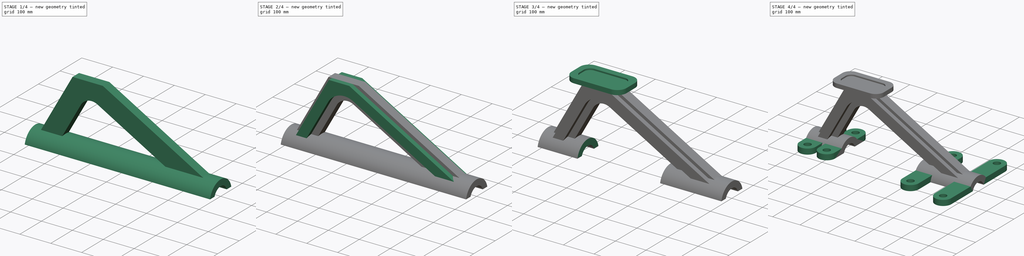
[diagram: build sequence overview — one tinted view per stage of 4, left to right]
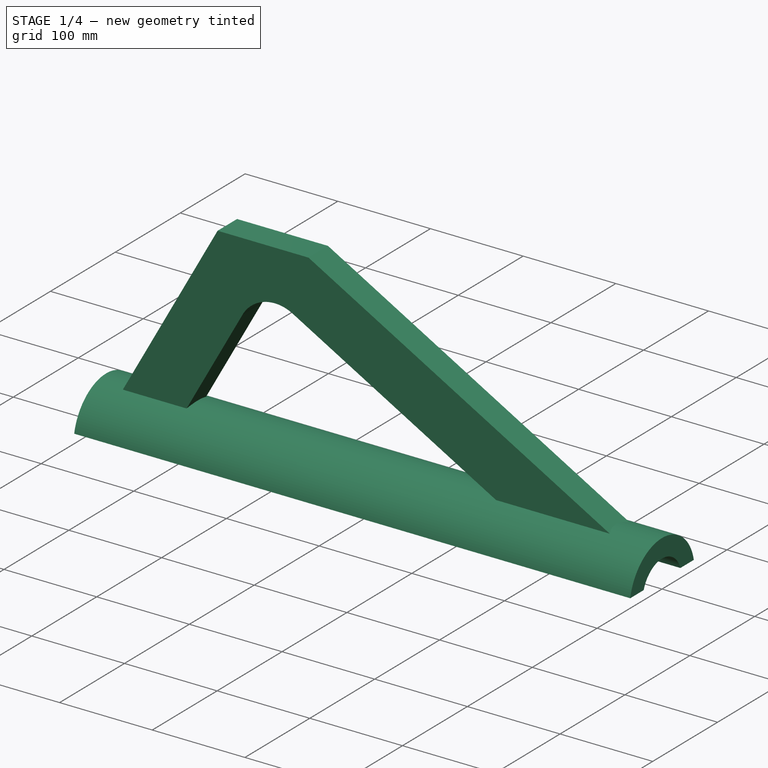
[diagram: stage 1 of 4 — iso view after this stage's code; geometry added in this stage tinted green]
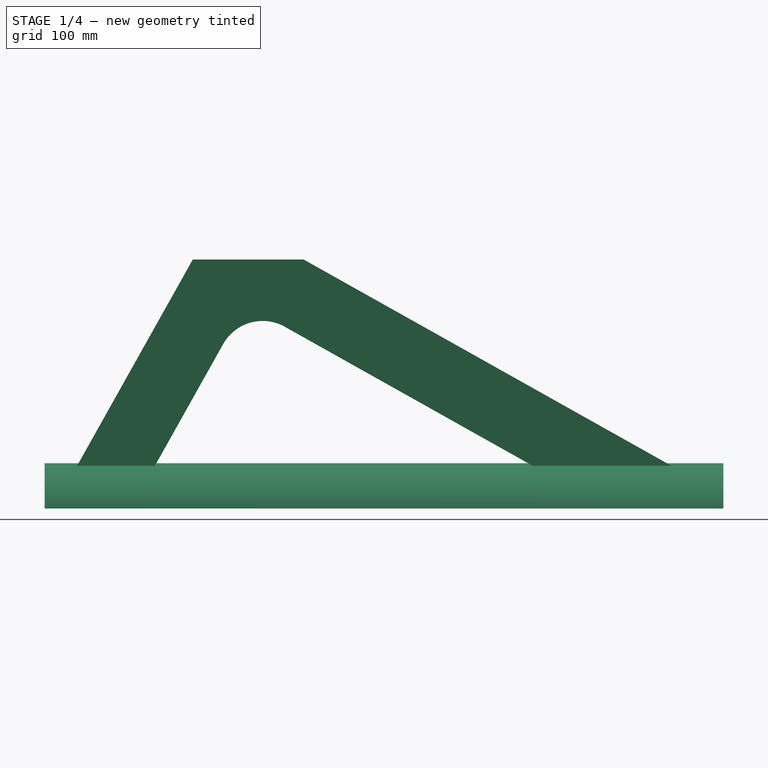
[diagram: stage 1 of 4 — front view after this stage's code; geometry added in this stage tinted green]
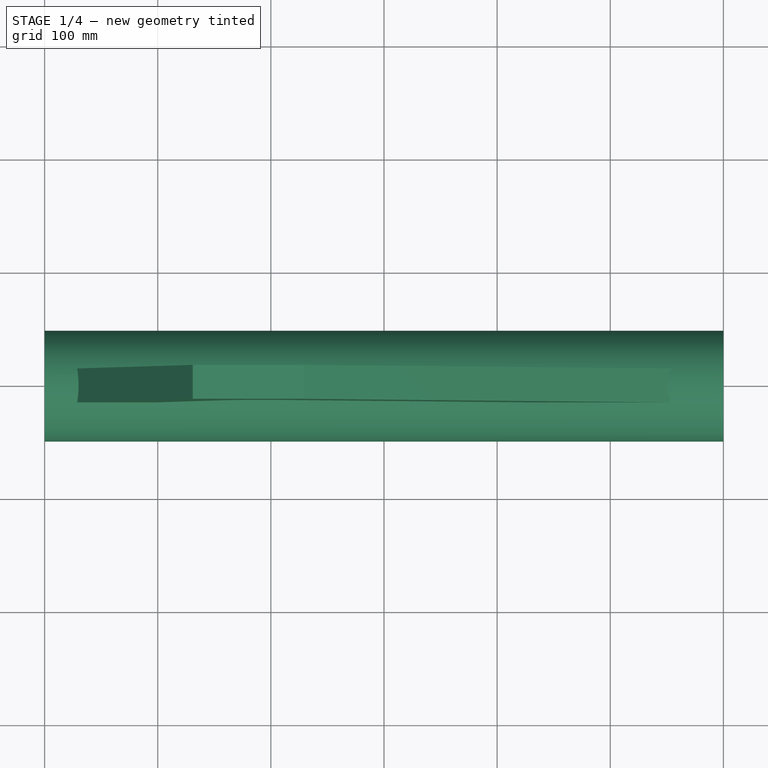
[diagram: stage 1 of 4 — top view after this stage's code; geometry added in this stage tinted green]
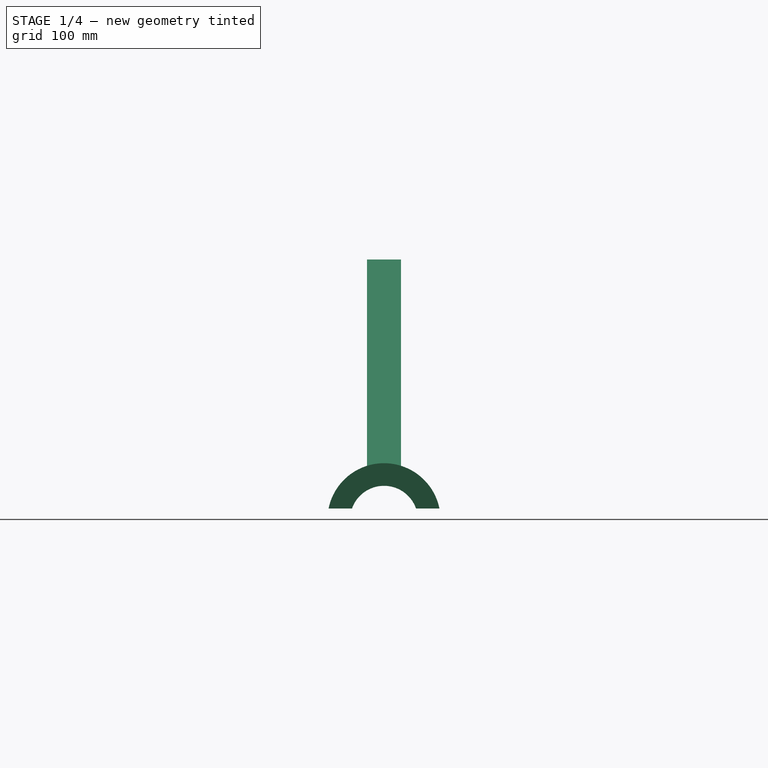
[diagram: stage 1 of 4 — right view after this stage's code; geometry added in this stage tinted green]
FCSTD DOCUMENT  (FreeCAD 1.1R42180 (Git))
Label: 23-T-83-Super_Mount
License: Creative Commons Attribution-NonCommercial-ShareAlike 4.0
LicenseURL: https://creativecommons.org/licenses/by-nc-sa/4.0/
objects: Sketcher::SketchObject×8, PartDesign::Pad×5, PartDesign::Mirrored×2, PartDesign::Pocket×2, App::Point×1, PartDesign::Body×1
note: 42 computed .brp shape members not serialized (recipe doc carries the construction recipe); baked Part::Feature solids carry a one-line shape summary decoded from their .brp

FEATURE [App::Point] Origin001  label="Origine"
  Role = Origin
FEATURE [Sketcher::SketchObject] Sketch
  ArcFitTolerance = 1e-06
  AttachmentSupport = -> [Origin]
  ExternalTypes = [0]
  FullyConstrained = true
  MakeInternals = false
  MapMode = 5
  Placement = pos=(0,0,0) rot=(0.57735,0.57735,0.57735;2.0944rad)
  sketch-geometry (5):
    g0: ArcOfCircle CenterX=0 CenterY=-10 CenterZ=0 NormalX=0 NormalY=0 NormalZ=1 AngleXU=0 Radius=30 StartAngle=0.339837 EndAngle=2.80176
    g1: ArcOfCircle CenterX=0 CenterY=-10 CenterZ=0 NormalX=0 NormalY=0 NormalZ=1 AngleXU=0 Radius=50 StartAngle=0.201358 EndAngle=2.94023
    g2: LineSegment StartX=-48.9898 StartY=7.1e-15 StartZ=0 EndX=-28.2843 EndY=-5.2172e-12 EndZ=0
    g3: LineSegment StartX=28.2843 StartY=-5.2154e-12 StartZ=0 EndX=48.9898 EndY=-3.6e-15 EndZ=0
    g4: GeomPoint [constr] X=0 Y=40 Z=0
  constraints (15):
    c: PointOnObject(g0,g-2)
    c: PointOnObject(g0,g-1)
    c: PointOnObject(g0,g-1)
    c: Coincident(g1,g0)
    c: PointOnObject(g1,g-1)
    c: PointOnObject(g1,g-1)
    c: Coincident(g2,g1)
    c: Coincident(g2,g0)
    c: Coincident(g3,g0)
    c: Coincident(g3,g1)
    c: Radius(g0) = 30
    c: Radius(g1) = 50
    c: PointOnObject(g4,g1)
    c: PointOnObject(g4,g-2)
    c: Distance(g4,g-1) = 40
FEATURE [PartDesign::Pad] Pad
  Direction = (1,0,0)
  Length = 600
  Length2 = 10
  Profile = -> Sketch
  ReferenceAxis = -> Sketch [N_Axis]
  Refine = true
  Suppressed = false
  Type = 0
FEATURE [Sketcher::SketchObject] Sketch001
  ArcFitTolerance = 1e-06
  AttachmentSupport = -> [Origin]
  ExternalTypes = [0]
  FullyConstrained = true
  MakeInternals = false
  MapMode = 5
FEATURE [Sketcher::SketchObject] Sketch002
  ArcFitTolerance = 1e-06
  AttachmentSupport = -> [Origin]
  ExternalGeometry = -> [Pad]
  ExternalTypes = [0,0,0]
  FullyConstrained = true
  MakeInternals = false
  MapMode = 5
  Placement = pos=(0,0,0) rot=(1,0,0;1.5708rad)
  sketch-geometry (13):
    g0: LineSegment StartX=18.7833 StartY=20 StartZ=0 EndX=130.95 EndY=220 EndZ=0
    g1: LineSegment StartX=130.95 StartY=220 StartZ=0 EndX=229.05 EndY=220 EndZ=0
    g2: LineSegment StartX=229.05 StartY=220 StartZ=0 EndX=585.661 EndY=20 EndZ=0
    g3: LineSegment StartX=18.7833 StartY=20 StartZ=0 EndX=87.5752 EndY=20 EndZ=0
    g4: LineSegment StartX=87.5752 StartY=20 StartZ=0 EndX=157.839 EndY=145.284 EndZ=0
    g5: LineSegment StartX=212.293 StartY=160.606 StartZ=0 EndX=463.001 EndY=20 EndZ=0
    g6: LineSegment StartX=463.001 StartY=20 StartZ=0 EndX=585.661 EndY=20 EndZ=0
    g7: ArcOfCircle CenterX=192.727 CenterY=125.718 CenterZ=0 NormalX=0 NormalY=0 NormalZ=1 AngleXU=0 Radius=40 StartAngle=1.05967 EndAngle=2.63047
    g8: LineSegment [constr] StartX=229.05 StartY=220 StartZ=0 EndX=229.05 EndY=235 EndZ=0
    g9: GeomPoint [constr] X=30 Y=40 Z=0
    g10: GeomPoint [constr] X=550 Y=40 Z=0
    g11: LineSegment [constr] StartX=130.95 StartY=220 StartZ=0 EndX=90 EndY=220 EndZ=0
    g12: LineSegment [constr] StartX=229.05 StartY=220 StartZ=0 EndX=270 EndY=220 EndZ=0
  constraints (36):
    c: Coincident(g0,g1)
    c: Horizontal(g1)
    c: Coincident(g1,g2)
    c: Horizontal(g2,g0)
    c: Horizontal(g0,g-16)
    c: Coincident(g0,g3)
    c: PointOnObject(g3,g-14)
    c: Coincident(g3,g4)
    c: PointOnObject(g5,g-14)
    c: Coincident(g5,g6)
    c: Coincident(g6,g2)
    c: Angle(g4,g5) = 1.5708
    c: Parallel(g0,g4)
    c: Parallel(g5,g2)
    c: Radius(g7) = 40
    c: Tangent(g7,g5) = 1.5708
    c: Tangent(g7,g4) = 1.5708
    c: Distance(g4,g0) = 60
    c: Distance(g5,g2) = 60
    c: Distance(g8) = 15
    c: Coincident(g8,g1)
    c: Vertical(g8)
    c: Distance(g8,g-15) = 235
    c: PointOnObject(g9,g0)
    c: PointOnObject(g10,g2)
    c: PointOnObject(g10,g-7)
    c: DistanceX(g10,g-10) = 50
    c: DistanceX(g-9,g9) = 30
    c: PointOnObject(g9,g-7)
    c: Coincident(g11,g0)
    c: Horizontal(g11)
    c: Coincident(g12,g1)
    c: Horizontal(g12)
    c: Equal(g11,g12)
    c: DistanceX(g11,g12) = 180
    c: Distance(g11,g-2) = 90
FEATURE [PartDesign::Pad] Pad001
  BaseFeature = -> Pad
  Direction = (0,-1,0)
  Length = 30
  Length2 = 10
  Midplane = true
  Profile = -> Sketch002
  ReferenceAxis = -> Sketch002 [N_Axis]
  Refine = true
  Suppressed = false
  Type = 0
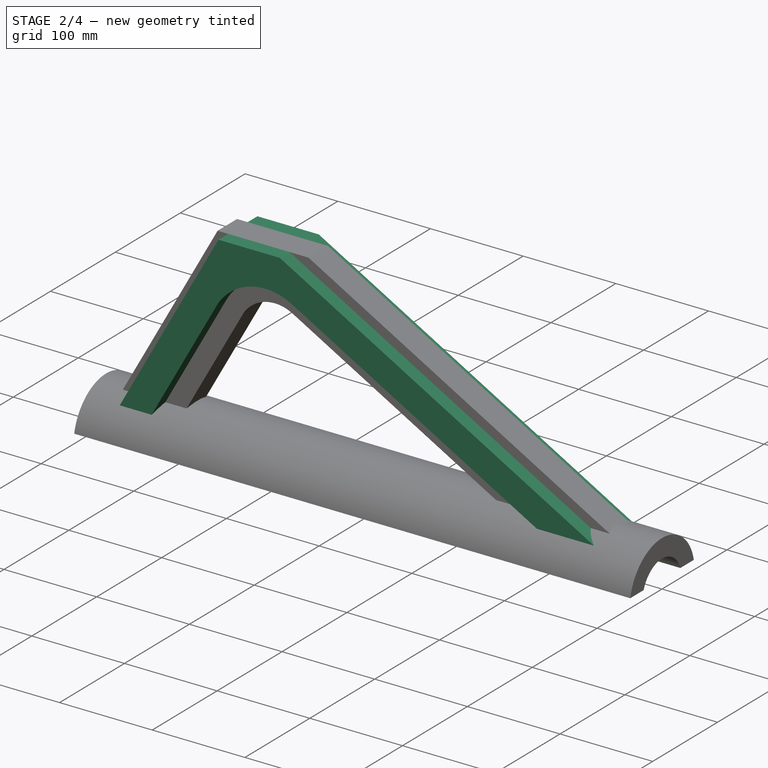
[diagram: stage 2 of 4 — iso view after this stage's code; geometry added in this stage tinted green]
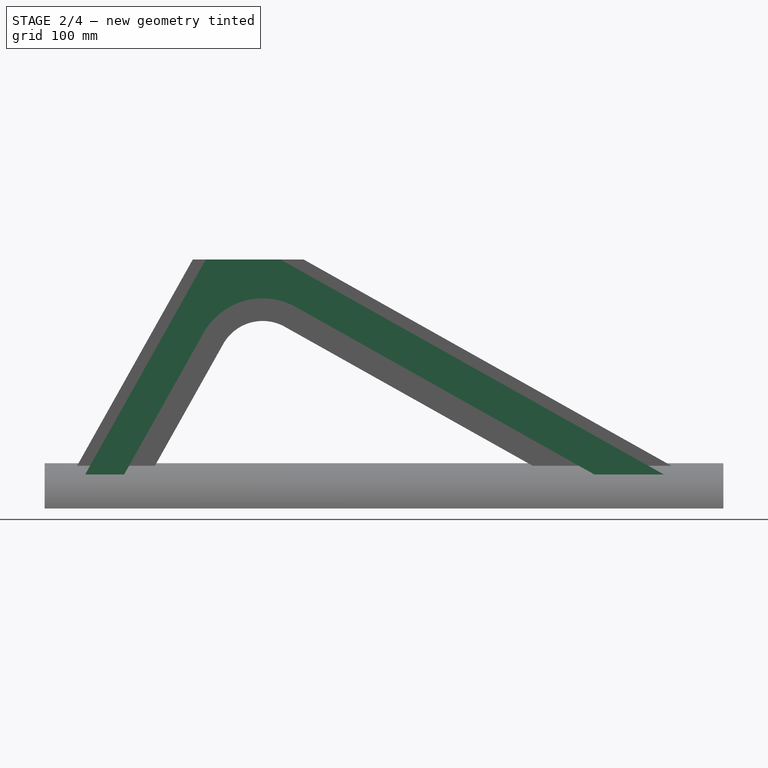
[diagram: stage 2 of 4 — front view after this stage's code; geometry added in this stage tinted green]
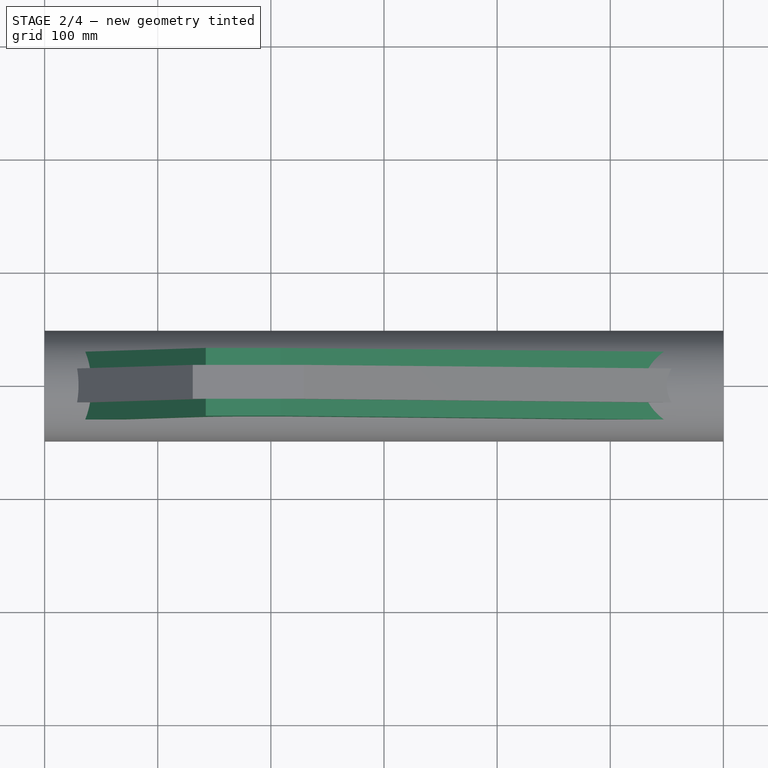
[diagram: stage 2 of 4 — top view after this stage's code; geometry added in this stage tinted green]
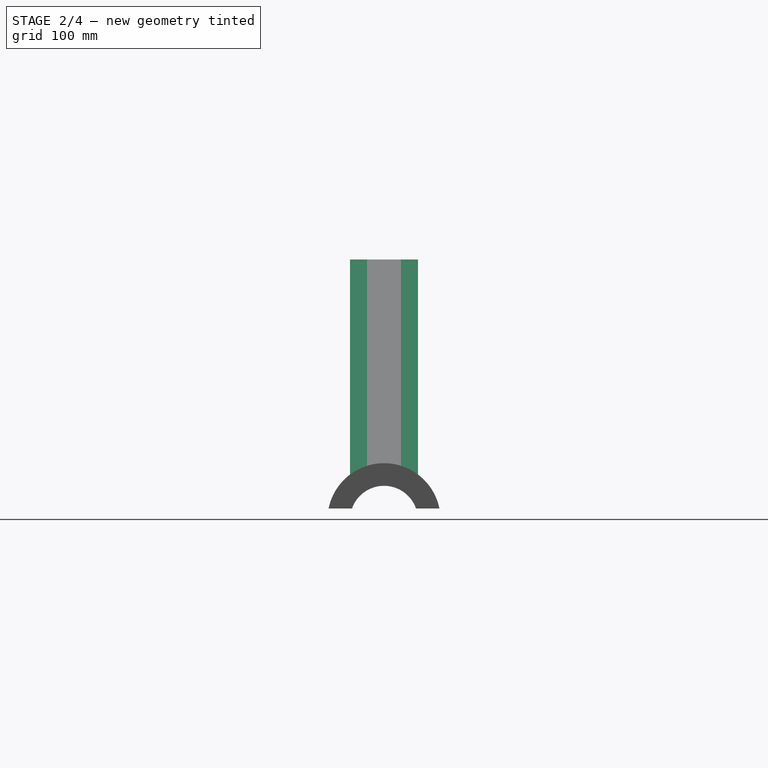
[diagram: stage 2 of 4 — right view after this stage's code; geometry added in this stage tinted green]
FEATURE [Sketcher::SketchObject] Sketch003
  ArcFitTolerance = 1e-06
  AttachmentSupport = -> [Origin]
  ExternalGeometry = -> [Pad001]
  ExternalTypes = [0,0,0,0,0]
  FullyConstrained = true
  MakeInternals = false
  MapMode = 5
  Placement = pos=(0,0,0) rot=(1,0,0;1.5708rad)
  sketch-geometry (8):
    g0: LineSegment StartX=30.2486 StartY=20 StartZ=0 EndX=142.416 EndY=220 EndZ=0
    g1: LineSegment StartX=142.416 StartY=220 StartZ=0 EndX=208.606 EndY=220 EndZ=0
    g2: LineSegment StartX=208.606 StartY=220 StartZ=0 EndX=565.218 EndY=20 EndZ=0
    g3: LineSegment StartX=565.218 StartY=20 StartZ=0 EndX=503.888 EndY=20 EndZ=0
    g4: LineSegment StartX=503.888 StartY=20 StartZ=0 EndX=222.076 EndY=178.05 EndZ=0
    g5: ArcOfCircle CenterX=192.727 CenterY=125.718 CenterZ=0 NormalX=0 NormalY=0 NormalZ=1 AngleXU=0 Radius=60 StartAngle=1.05967 EndAngle=2.63047
    g6: LineSegment StartX=140.395 StartY=155.067 StartZ=0 EndX=64.6446 EndY=20 EndZ=0
    g7: LineSegment StartX=64.6446 StartY=20 StartZ=0 EndX=30.2486 EndY=20 EndZ=0
  constraints (22):
    c: Coincident(g0,g1)
    c: Horizontal(g1)
    c: Coincident(g1,g2)
    c: Coincident(g2,g3)
    c: Horizontal(g3)
    c: Coincident(g3,g4)
    c: Tangent(g4,g5) = -1.5708
    c: Coincident(g6,g7)
    c: Coincident(g7,g0)
    c: Horizontal(g7)
    c: Horizontal(g0,g-7)
    c: Horizontal(g3,g6)
    c: Tangent(g5,g6) = -1.5708
    c: Coincident(g-3,g5)
    c: Parallel(g6,g-4)
    c: Distance(g5,g0) = 30
    c: Distance(g5,g-4) = 20
    c: Horizontal(g0,g-5)
    c: Parallel(g0,g6)
    c: Parallel(g4,g2)
    c: Parallel(g-6,g4)
    c: Distance(g4,g2) = 30
FEATURE [PartDesign::Pad] Pad002
  BaseFeature = -> Pad001
  Direction = (0,-1,2e-16)
  Length = 60
  Length2 = 10
  Midplane = true
  Profile = -> Sketch003
  ReferenceAxis = -> Sketch003 [N_Axis]
  Refine = true
  Suppressed = false
  Type = 0
FEATURE [PartDesign::Mirrored] Mirrored
  BaseFeature = -> Pad002
  MirrorPlane = -> XZ_Plane
  Originals = -> [Pad002]
  Refine = true
  Suppressed = false
  TransformMode = 0
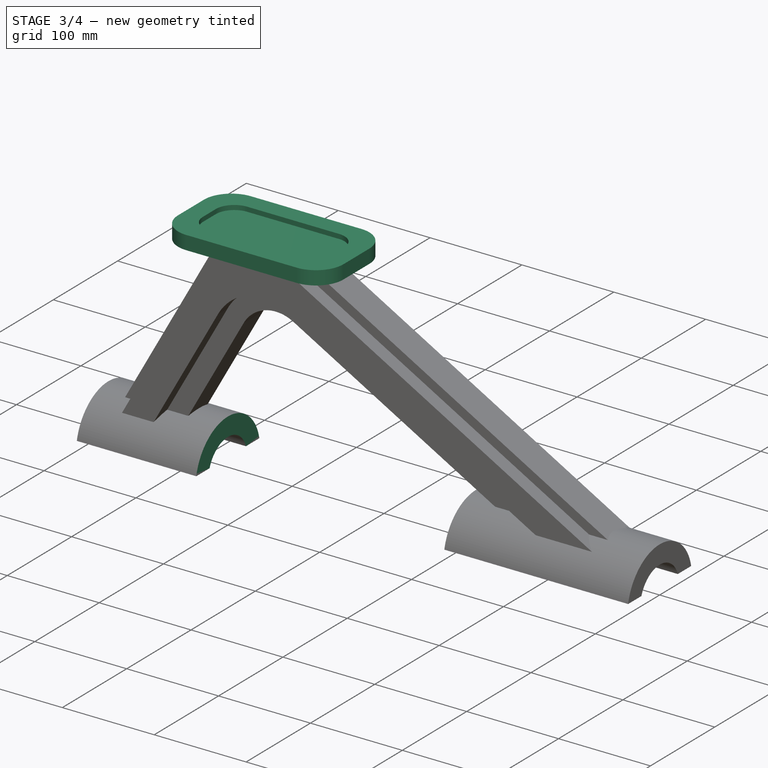
[diagram: stage 3 of 4 — iso view after this stage's code; geometry added in this stage tinted green]
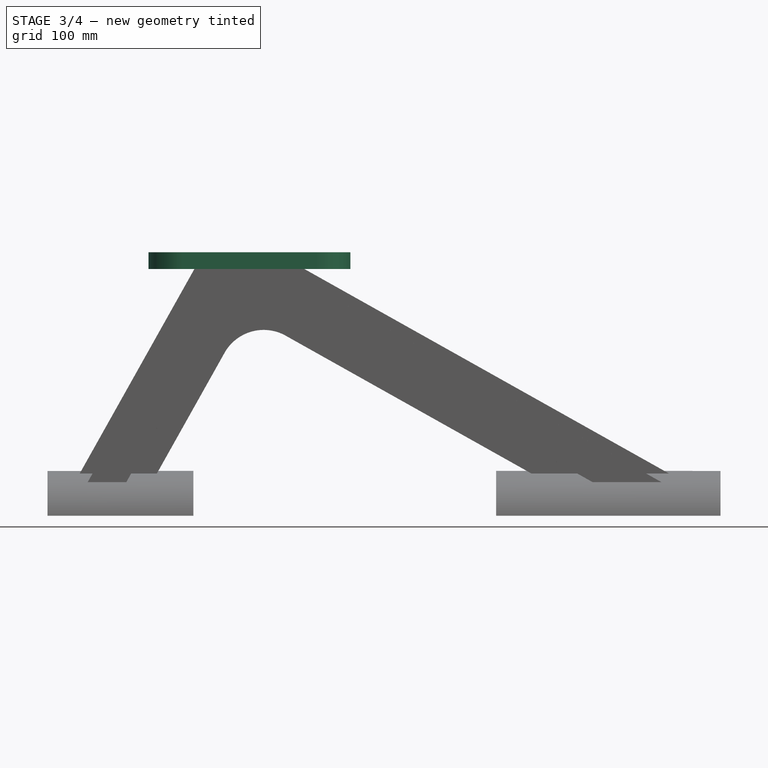
[diagram: stage 3 of 4 — front view after this stage's code; geometry added in this stage tinted green]
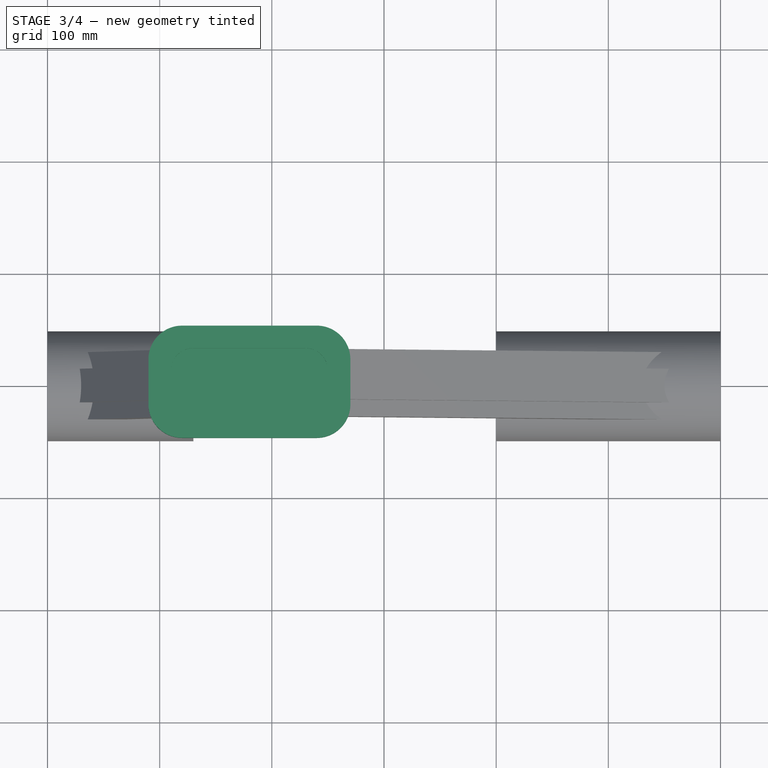
[diagram: stage 3 of 4 — top view after this stage's code; geometry added in this stage tinted green]
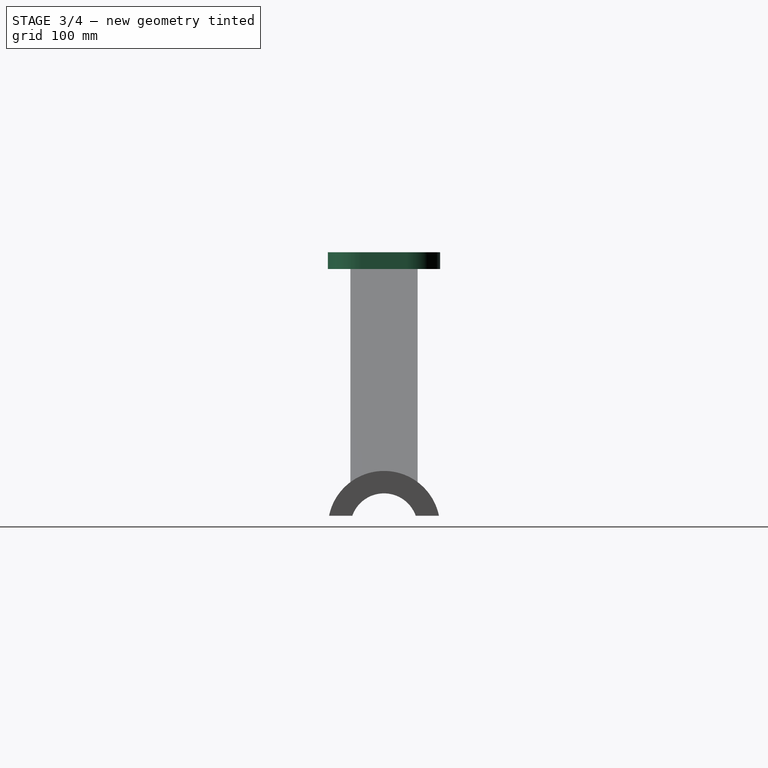
[diagram: stage 3 of 4 — right view after this stage's code; geometry added in this stage tinted green]
FEATURE [Sketcher::SketchObject] Sketch004
  ArcFitTolerance = 1e-06
  AttachmentSupport = -> [Origin]
  ExternalGeometry = -> [Mirrored]
  ExternalTypes = [0,0]
  FullyConstrained = true
  MakeInternals = false
  MapMode = 5
  Placement = pos=(0,0,0) rot=(1,0,0;1.5708rad)
  sketch-geometry (4):
    g0: LineSegment StartX=130 StartY=40 StartZ=0 EndX=130 EndY=0 EndZ=0
    g1: LineSegment StartX=130 StartY=0 StartZ=0 EndX=400 EndY=0 EndZ=0
    g2: LineSegment StartX=400 StartY=0 StartZ=0 EndX=400 EndY=40 EndZ=0
    g3: LineSegment StartX=400 StartY=40 StartZ=0 EndX=130 EndY=40 EndZ=0
  constraints (12):
    c: Coincident(g0,g1)
    c: Coincident(g1,g2)
    c: Coincident(g2,g3)
    c: Coincident(g3,g0)
    c: Vertical(g0)
    c: Vertical(g2)
    c: Horizontal(g1)
    c: Horizontal(g3)
    c: DistanceX(g-1,g0) = 130
    c: DistanceX(g1,g-3) = 200
    c: Horizontal(g2,g-3)
    c: Horizontal(g1,g-3)
FEATURE [PartDesign::Pocket] Pocket
  BaseFeature = -> Mirrored
  Direction = (0,1,-2e-16)
  Length = 5
  Length2 = 5
  Midplane = true
  Profile = -> Sketch004
  ReferenceAxis = -> Sketch004 [N_Axis]
  Refine = true
  Suppressed = false
  Type = 1
FEATURE [Sketcher::SketchObject] Sketch005
  ArcFitTolerance = 1e-06
  AttachmentSupport = -> [Pocket]
  ExternalTypes = [0]
  FullyConstrained = true
  MakeInternals = false
  MapMode = 5
  Placement = pos=(0,0,220) rot=(0,0,1;0rad)
  sketch-geometry (10):
    g0: LineSegment StartX=90 StartY=20 StartZ=0 EndX=90 EndY=-20 EndZ=0
    g1: LineSegment StartX=120 StartY=-50 StartZ=0 EndX=240 EndY=-50 EndZ=0
    g2: LineSegment StartX=270 StartY=-20 StartZ=0 EndX=270 EndY=20 EndZ=0
    g3: LineSegment StartX=240 StartY=50 StartZ=0 EndX=120 EndY=50 EndZ=0
    g4: ArcOfCircle CenterX=120 CenterY=20 CenterZ=0 NormalX=0 NormalY=0 NormalZ=1 AngleXU=0 Radius=30 StartAngle=1.5708 EndAngle=3.14159
    g5: ArcOfCircle CenterX=120 CenterY=-20 CenterZ=0 NormalX=0 NormalY=0 NormalZ=1 AngleXU=0 Radius=30 StartAngle=3.14159 EndAngle=4.71239
    g6: ArcOfCircle CenterX=240 CenterY=-20 CenterZ=0 NormalX=0 NormalY=0 NormalZ=1 AngleXU=0 Radius=30 StartAngle=4.71239 EndAngle=6.28319
    g7: ArcOfCircle CenterX=240 CenterY=20 CenterZ=0 NormalX=0 NormalY=0 NormalZ=1 AngleXU=0 Radius=30 StartAngle=0 EndAngle=1.5708
    g8: GeomPoint [constr] X=90 Y=50 Z=0
    g9: GeomPoint [constr] X=270 Y=-50 Z=0
  constraints (23):
    c: Tangent(g0,g4) = -1.5708
    c: Tangent(g0,g5) = -1.5708
    c: Tangent(g1,g5) = -1.5708
    c: Tangent(g1,g6) = -1.5708
    c: Tangent(g2,g6) = -1.5708
    c: Tangent(g2,g7) = -1.5708
    c: Tangent(g3,g7) = -1.5708
    c: Tangent(g3,g4) = -1.5708
    c: Vertical(g0)
    c: Vertical(g2)
    c: Horizontal(g1)
    c: Horizontal(g3)
    c: Equal(g4,g5)
    c: Equal(g5,g6)
    c: PointOnObject(g8,g0)
    c: PointOnObject(g8,g3)
    c: PointOnObject(g9,g1)
    c: PointOnObject(g9,g2)
    c: Distance(g0,g2) = 180
    c: Distance(g1,g3) = 100
    c: Radius(g5) = 30
    c: Symmetric(g6,g7,g-1)
    c: Distance(g0,g-2) = 90
FEATURE [PartDesign::Pad] Pad003
  BaseFeature = -> Pocket
  Direction = (0,0,1)
  Length = 15
  Length2 = 10
  Profile = -> Sketch005
  ReferenceAxis = -> Sketch005 [N_Axis]
  Refine = true
  Suppressed = false
  Type = 0
FEATURE [Sketcher::SketchObject] Sketch006
  ArcFitTolerance = 1e-06
  AttachmentSupport = -> [Pad003]
  ExternalGeometry = -> [Sketch005]
  ExternalTypes = [0,0,0]
  FullyConstrained = true
  MakeInternals = false
  MapMode = 5
  Placement = pos=(0,0,235) rot=(0,0,1;0rad)
  sketch-geometry (10):
    g0: LineSegment StartX=110 StartY=10 StartZ=0 EndX=110 EndY=-10 EndZ=0
    g1: LineSegment StartX=130 StartY=-30 StartZ=0 EndX=230 EndY=-30 EndZ=0
    g2: LineSegment StartX=250 StartY=-10 StartZ=0 EndX=250 EndY=10 EndZ=0
    g3: LineSegment StartX=230 StartY=30 StartZ=0 EndX=130 EndY=30 EndZ=0
    g4: ArcOfCircle CenterX=130 CenterY=10 CenterZ=0 NormalX=0 NormalY=0 NormalZ=1 AngleXU=0 Radius=20 StartAngle=1.5708 EndAngle=3.14159
    g5: ArcOfCircle CenterX=130 CenterY=-10 CenterZ=0 NormalX=0 NormalY=0 NormalZ=1 AngleXU=0 Radius=20 StartAngle=3.14159 EndAngle=4.71239
    g6: ArcOfCircle CenterX=230 CenterY=-10 CenterZ=0 NormalX=0 NormalY=0 NormalZ=1 AngleXU=0 Radius=20 StartAngle=4.71239 EndAngle=6.28319
    g7: ArcOfCircle CenterX=230 CenterY=10 CenterZ=0 NormalX=0 NormalY=0 NormalZ=1 AngleXU=0 Radius=20 StartAngle=0 EndAngle=1.5708
    g8: GeomPoint [constr] X=110 Y=30 Z=0
    g9: GeomPoint [constr] X=250 Y=-30 Z=0
  constraints (23):
    c: Tangent(g0,g4) = -1.5708
    c: Tangent(g0,g5) = -1.5708
    c: Tangent(g1,g5) = -1.5708
    c: Tangent(g1,g6) = -1.5708
    c: Tangent(g2,g6) = -1.5708
    c: Tangent(g2,g7) = -1.5708
    c: Tangent(g3,g7) = -1.5708
    c: Tangent(g3,g4) = -1.5708
    c: Vertical(g0)
    c: Vertical(g2)
    c: Horizontal(g1)
    c: Horizontal(g3)
    c: Equal(g4,g5)
    c: Equal(g5,g6)
    c: PointOnObject(g8,g0)
    c: PointOnObject(g8,g3)
    c: PointOnObject(g9,g1)
    c: PointOnObject(g9,g2)
    c: Radius(g5) = 20
    c: Distance(g3,g-3) = 20
    c: Symmetric(g6,g7,g-1)
    c: DistanceX(g2,g-4) = 20
    c: Distance(g0,g-5) = 20
FEATURE [PartDesign::Pocket] Pocket001
  BaseFeature = -> Pad003
  Direction = (0,0,-1)
  Length = 5
  Length2 = 5
  Profile = -> Sketch006
  ReferenceAxis = -> Sketch006 [N_Axis]
  Refine = true
  Suppressed = false
  Type = 0
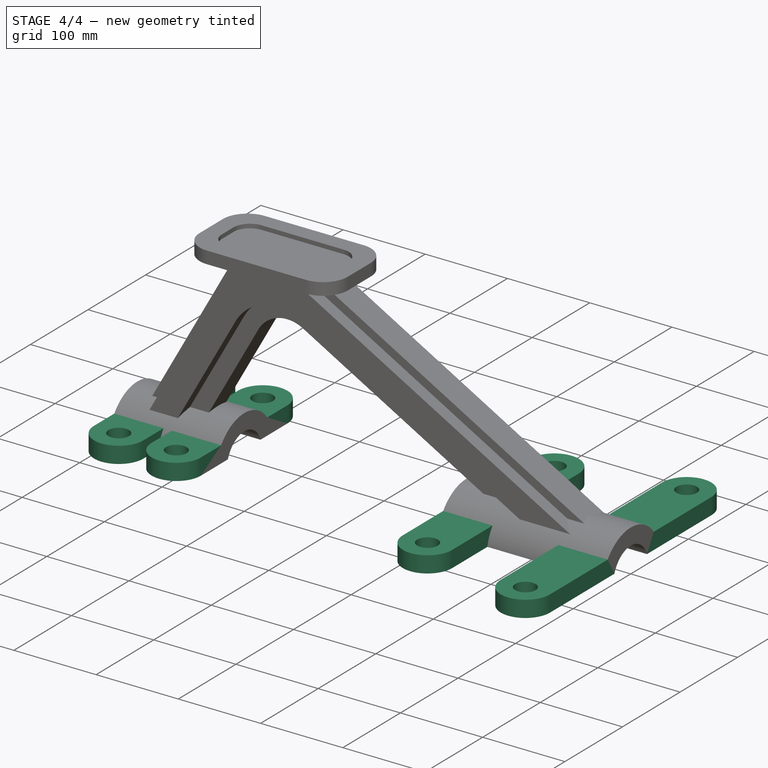
[diagram: stage 4 of 4 — iso view after this stage's code; geometry added in this stage tinted green]
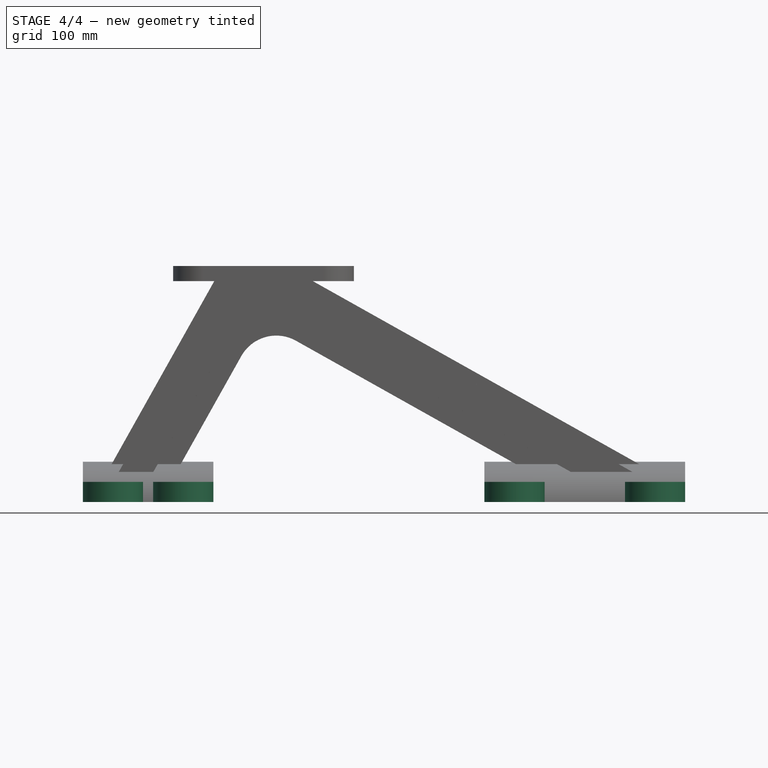
[diagram: stage 4 of 4 — front view after this stage's code; geometry added in this stage tinted green]
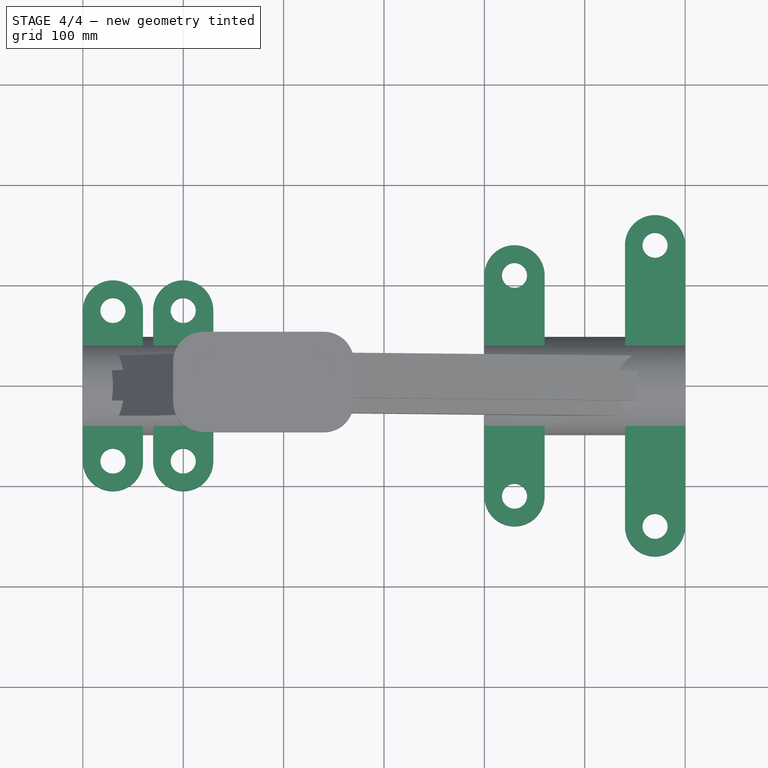
[diagram: stage 4 of 4 — top view after this stage's code; geometry added in this stage tinted green]
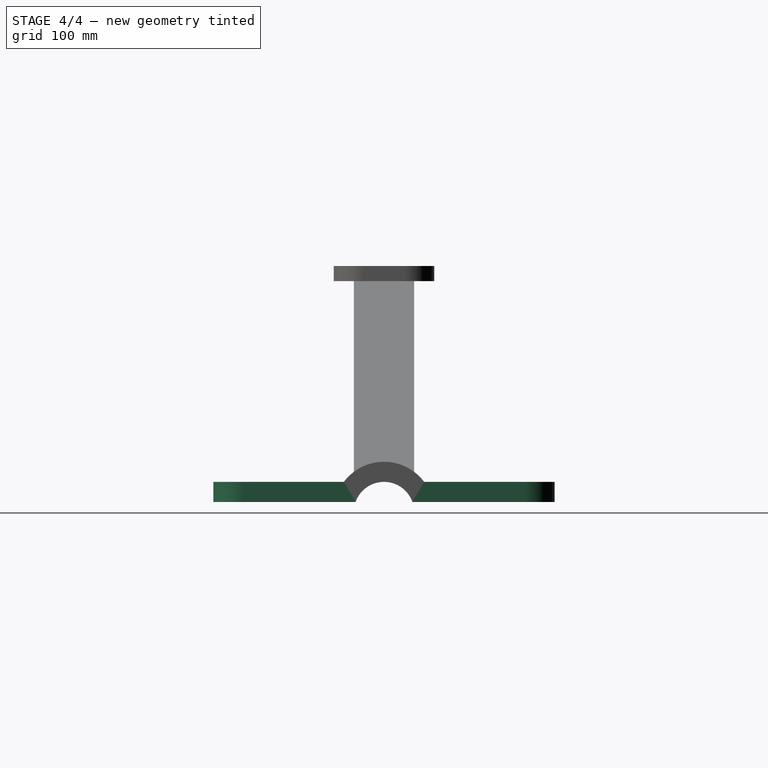
[diagram: stage 4 of 4 — right view after this stage's code; geometry added in this stage tinted green]
FEATURE [Sketcher::SketchObject] Sketch007
  ArcFitTolerance = 1e-06
  AttachmentSupport = -> [Origin]
  ExternalGeometry = -> [Pocket001]
  ExternalTypes = [0,0,0,0]
  FullyConstrained = true
  MakeInternals = false
  MapMode = 5
  expr: Constraints[24] = 150 / 2
  expr: Constraints[45] = 220 / 2
  sketch-geometry (20):
    g0: Circle CenterX=30 CenterY=-75 CenterZ=0 NormalX=0 NormalY=0 NormalZ=1 AngleXU=0 Radius=12.5
    g1: Circle CenterX=100 CenterY=-75 CenterZ=0 NormalX=0 NormalY=0 NormalZ=1 AngleXU=0 Radius=12.5
    g2: Circle CenterX=430 CenterY=-110 CenterZ=0 NormalX=0 NormalY=0 NormalZ=1 AngleXU=0 Radius=12.5
    g3: Circle CenterX=570 CenterY=-140 CenterZ=0 NormalX=0 NormalY=0 NormalZ=1 AngleXU=0 Radius=12.5
    g4: LineSegment StartX=0 StartY=-28.2843 StartZ=0 EndX=0 EndY=-75 EndZ=0
    g5: ArcOfCircle CenterX=30 CenterY=-75 CenterZ=0 NormalX=0 NormalY=0 NormalZ=1 AngleXU=0 Radius=30 StartAngle=3.14159 EndAngle=6.28319
    g6: LineSegment StartX=60 StartY=-75 StartZ=0 EndX=60 EndY=-28.2843 EndZ=0
    g7: LineSegment StartX=60 StartY=-28.2843 StartZ=0 EndX=0 EndY=-28.2843 EndZ=0
    g8: LineSegment StartX=130 StartY=-28.2843 StartZ=0 EndX=130 EndY=-75 EndZ=0
    g9: ArcOfCircle CenterX=100 CenterY=-75 CenterZ=0 NormalX=0 NormalY=0 NormalZ=1 AngleXU=0 Radius=30 StartAngle=3.14159 EndAngle=6.28319
    g10: LineSegment StartX=70 StartY=-75 StartZ=0 EndX=70 EndY=-28.2843 EndZ=0
    g11: LineSegment StartX=70 StartY=-28.2843 StartZ=0 EndX=130 EndY=-28.2843 EndZ=0
    g12: LineSegment StartX=400 StartY=-28.2843 StartZ=0 EndX=460 EndY=-28.2843 EndZ=0
    g13: LineSegment StartX=460 StartY=-28.2843 StartZ=0 EndX=460 EndY=-110 EndZ=0
    g14: ArcOfCircle CenterX=430 CenterY=-110 CenterZ=0 NormalX=0 NormalY=0 NormalZ=1 AngleXU=0 Radius=30 StartAngle=3.14159 EndAngle=6.28319
    g15: LineSegment StartX=400 StartY=-110 StartZ=0 EndX=400 EndY=-28.2843 EndZ=0
    g16: LineSegment StartX=540 StartY=-28.2843 StartZ=0 EndX=540 EndY=-140 EndZ=0
    g17: ArcOfCircle CenterX=570 CenterY=-140 CenterZ=0 NormalX=0 NormalY=0 NormalZ=1 AngleXU=0 Radius=30 StartAngle=3.14159 EndAngle=6.28319
    g18: LineSegment StartX=600 StartY=-140 StartZ=0 EndX=600 EndY=-28.2843 EndZ=0
    g19: LineSegment StartX=600 StartY=-28.2843 StartZ=0 EndX=540 EndY=-28.2843 EndZ=0
  constraints (48):
    c: Equal(g0,g1)
    c: Equal(g1,g2)
    c: Equal(g2,g3)
    c: Diameter(g3) = 25
    c: Vertical(g4)
    c: Tangent(g4,g5) = -1.5708
    c: Tangent(g5,g6) = -1.5708
    c: Coincident(g6,g7)
    c: Coincident(g7,g4)
    c: Horizontal(g7)
    c: Vertical(g6)
    c: Coincident(g4,g-5)
    c: Coincident(g0,g5)
    c: Radius(g5) = 30
    c: Coincident(g-5,g8)
    c: Vertical(g8)
    c: Tangent(g8,g9) = 1.5708
    c: Tangent(g9,g10) = 1.5708
    c: Coincident(g10,g11)
    c: Coincident(g11,g8)
    c: Horizontal(g11)
    c: Coincident(g1,g9)
    c: Horizontal(g1,g0)
    c: Vertical(g10)
    c: Distance(g1,g-1) = 75
    c: Equal(g11,g7)
    c: Coincident(g-6,g12)
    c: PointOnObject(g12,g-6)
    c: Coincident(g12,g13)
    c: Vertical(g13)
    c: Tangent(g13,g14) = 1.5708
    c: Tangent(g14,g15) = 1.5708
    c: Coincident(g15,g12)
    c: PointOnObject(g16,g-6)
    c: Tangent(g16,g17) = -1.5708
    c: Tangent(g17,g18) = -1.5708
    c: Coincident(g18,g19)
    c: Coincident(g19,g16)
    c: Vertical(g16)
    c: Vertical(g18)
    c: Coincident(g18,g-6)
    c: Vertical(g15)
    c: Equal(g12,g19)
    c: Coincident(g17,g3)
    c: Coincident(g14,g2)
    c: Distance(g2,g-1) = 110
    c: Distance(g3,g-1) = 140
    c: Equal(g5,g14)
FEATURE [PartDesign::Pad] Pad004
  BaseFeature = -> Pocket001
  Direction = (0,0,1)
  Length = 20
  Length2 = 10
  Profile = -> Sketch007
  ReferenceAxis = -> Sketch007 [N_Axis]
  Refine = true
  Suppressed = false
  Type = 0
FEATURE [PartDesign::Mirrored] Mirrored001
  BaseFeature = -> Pad004
  MirrorPlane = -> XZ_Plane
  Originals = -> [Pad004]
  Refine = true
  Suppressed = false
  TransformMode = 0
FEATURE [PartDesign::Body] Body
  AllowCompound = true
  Group = -> [Sketch,Pad,Sketch001,Sketch002,Pad001,Sketch003,Pad002,Mirrored,Sketch004,Pocket,Sketch005,Pad003,Sketch006,Pocket001,Sketch007,Pad004,Mirrored001]
  Origin = -> Origin
  Tip = -> Mirrored001
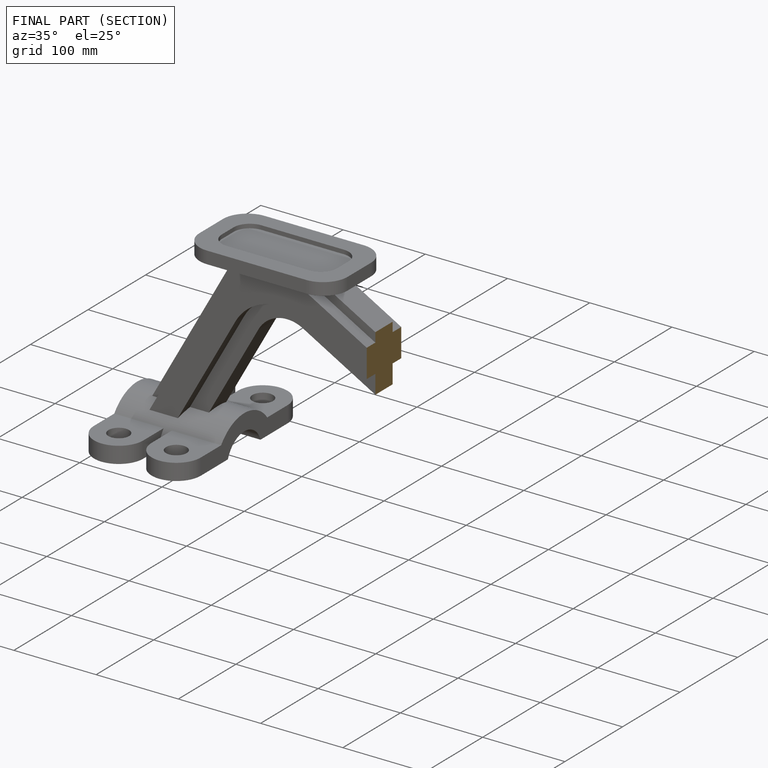
[diagram: finished part — half-section view (interior)]
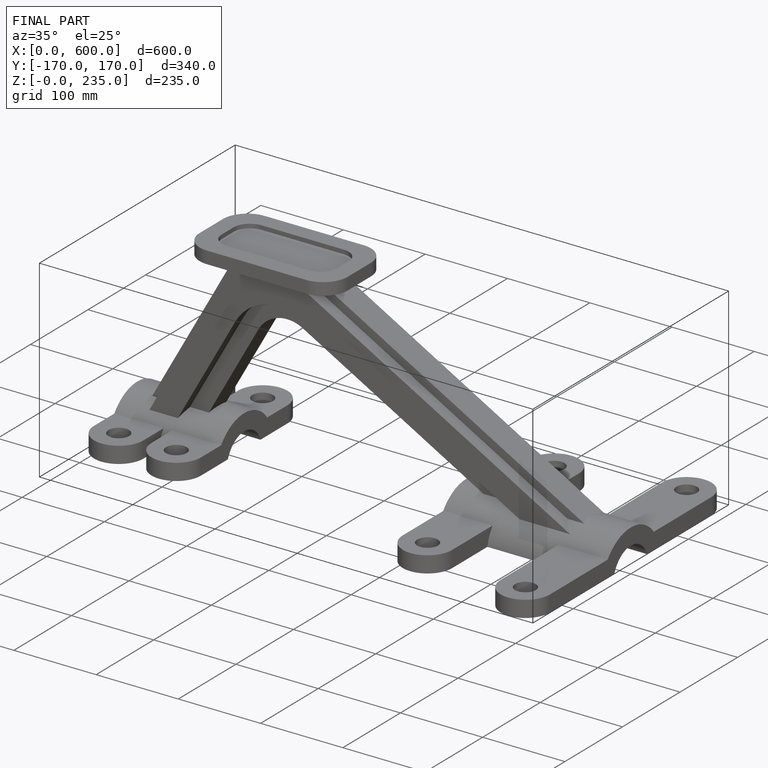
[diagram: finished part — iso view with bounding-box wireframe]
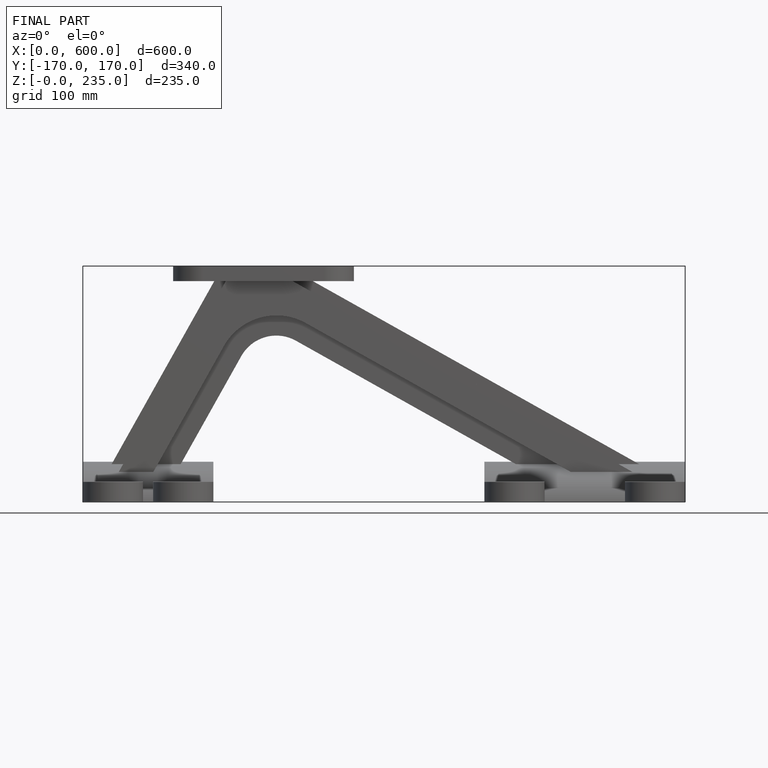
[diagram: finished part — front view with bounding-box wireframe]
